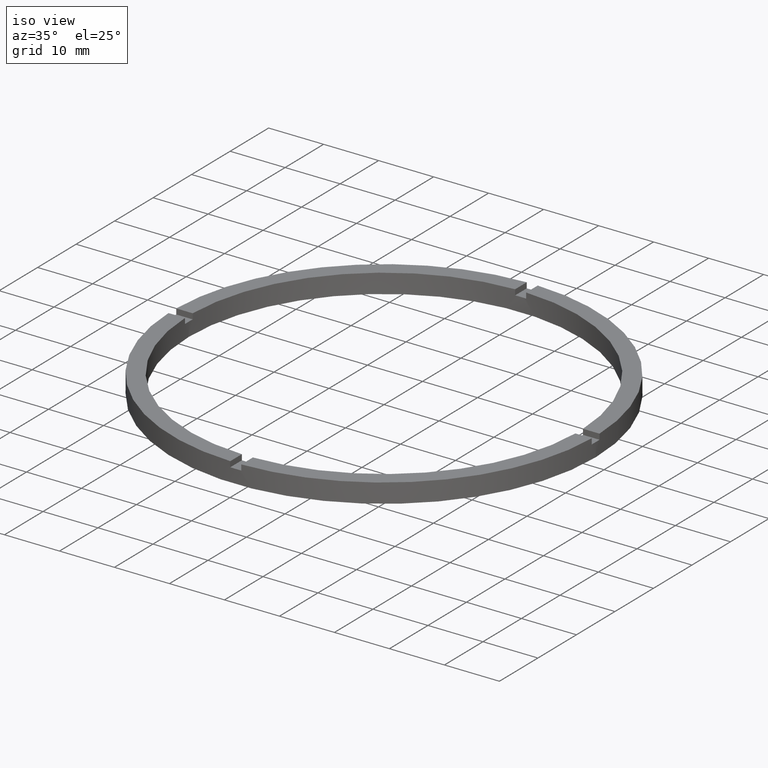
[diagram: clean part render]
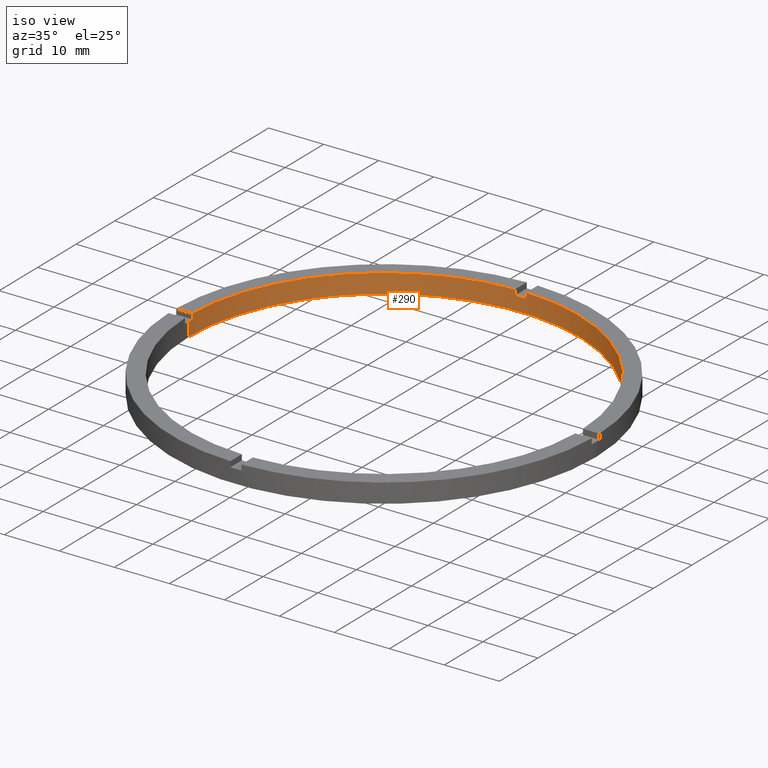
[diagram: same view with one face highlighted and labeled with its STEP entity id]
A machine part, iso view. The second image highlights one B-rep face of the part: STEP entity #290.
In plain terms, the highlighted cylindrical surface (partial cylindrical patch) has radius 35.5 mm, axis along (-0, -0, -1).
Its self-contained STEP definition (entity closure, byte-faithful):
#15 = DIRECTION ( 'NONE',  ( -0.000000000000000000, -0.000000000000000000, -1.000000000000000000 ) ) ;
#25 = DIRECTION ( 'NONE',  ( 0.000000000000000000, 0.000000000000000000, 1.000000000000000000 ) ) ;
#26 = VERTEX_POINT ( 'NONE', #302 ) ;
#38 = LINE ( 'NONE', #237, #43 ) ;
#41 = CARTESIAN_POINT ( 'NONE',  ( 0.9999999999999746869, 35.48591269785801217, 3.500000000000000000 ) ) ;
#43 = VECTOR ( 'NONE', #567, 1000.000000000000000 ) ;
#47 = CIRCLE ( 'NONE', #284, 35.50000000000000711 ) ;
#48 = DIRECTION ( 'NONE',  ( 1.000000000000000000, 0.000000000000000000, 0.000000000000000000 ) ) ;
#60 = LINE ( 'NONE', #716, #602 ) ;
#61 = DIRECTION ( 'NONE',  ( 0.000000000000000000, 0.000000000000000000, 1.000000000000000000 ) ) ;
#62 = ORIENTED_EDGE ( 'NONE', *, *, #647, .T. ) ;
#64 = VECTOR ( 'NONE', #327, 1000.000000000000000 ) ;
#67 = CIRCLE ( 'NONE', #692, 35.50000000000000711 ) ;
#68 = ORIENTED_EDGE ( 'NONE', *, *, #270, .T. ) ;
#78 = DIRECTION ( 'NONE',  ( -0.000000000000000000, -0.000000000000000000, -1.000000000000000000 ) ) ;
#98 = CARTESIAN_POINT ( 'NONE',  ( 0.000000000000000000, 0.000000000000000000, 3.500000000000000000 ) ) ;
#102 = CARTESIAN_POINT ( 'NONE',  ( -1.000000000000025313, 35.48591269785801217, 3.500000000000000000 ) ) ;
#110 = AXIS2_PLACEMENT_3D ( 'NONE', #404, #619, #123 ) ;
#114 = CARTESIAN_POINT ( 'NONE',  ( 0.9999999999999746869, 35.48591269785801217, 3.500000000000000000 ) ) ;
#118 = EDGE_CURVE ( 'NONE', #493, #760, #299, .T. ) ;
#123 = DIRECTION ( 'NONE',  ( 1.000000000000000000, 0.000000000000000000, 0.000000000000000000 ) ) ;
#137 = EDGE_CURVE ( 'NONE', #493, #429, #38, .T. ) ;
#156 = VERTEX_POINT ( 'NONE', #580 ) ;
#167 = ORIENTED_EDGE ( 'NONE', *, *, #230, .F. ) ;
#171 = EDGE_CURVE ( 'NONE', #490, #448, #47, .T. ) ;
#177 = DIRECTION ( 'NONE',  ( 1.000000000000000000, 0.000000000000000000, 0.000000000000000000 ) ) ;
#198 = VERTEX_POINT ( 'NONE', #41 ) ;
#215 = CARTESIAN_POINT ( 'NONE',  ( -1.000000000000025313, 35.48591269785801217, 3.500000000000000000 ) ) ;
#227 = VECTOR ( 'NONE', #694, 1000.000000000000000 ) ;
#230 = EDGE_CURVE ( 'NONE', #542, #770, #771, .T. ) ;
#237 = CARTESIAN_POINT ( 'NONE',  ( -35.48591269785801217, 0.9999999999999726885, 3.500000000000000000 ) ) ;
#245 = CARTESIAN_POINT ( 'NONE',  ( 0.000000000000000000, 0.000000000000000000, 2.500000000000000000 ) ) ;
#247 = VECTOR ( 'NONE', #522, 1000.000000000000000 ) ;
#248 = VERTEX_POINT ( 'NONE', #377 ) ;
#258 = CARTESIAN_POINT ( 'NONE',  ( -1.000000000000025313, 35.48591269785801217, 2.500000000000000000 ) ) ;
#270 = EDGE_CURVE ( 'NONE', #156, #198, #777, .T. ) ;
#280 = CARTESIAN_POINT ( 'NONE',  ( 35.50000000000000711, 4.347496136973104070E-15, 0.000000000000000000 ) ) ;
#281 = CARTESIAN_POINT ( 'NONE',  ( 0.000000000000000000, 0.000000000000000000, 2.500000000000000000 ) ) ;
#284 = AXIS2_PLACEMENT_3D ( 'NONE', #281, #289, #643 ) ;
#289 = DIRECTION ( 'NONE',  ( 0.000000000000000000, -0.000000000000000000, 1.000000000000000000 ) ) ;
#290 = ADVANCED_FACE ( 'NONE', ( #761 ), #507, .F. ) ;
#298 = CARTESIAN_POINT ( 'NONE',  ( 0.000000000000000000, 0.000000000000000000, 3.500000000000000000 ) ) ;
#299 = CIRCLE ( 'NONE', #654, 35.50000000000000711 ) ;
#302 = CARTESIAN_POINT ( 'NONE',  ( -35.50000000000000711, 0.000000000000000000, 0.000000000000000000 ) ) ;
#314 = AXIS2_PLACEMENT_3D ( 'NONE', #298, #78, #625 ) ;
#325 = VECTOR ( 'NONE', #362, 1000.000000000000000 ) ;
#327 = DIRECTION ( 'NONE',  ( -0.000000000000000000, -0.000000000000000000, -1.000000000000000000 ) ) ;
#330 = EDGE_CURVE ( 'NONE', #542, #248, #743, .T. ) ;
#333 = LINE ( 'NONE', #102, #64 ) ;
#335 = ORIENTED_EDGE ( 'NONE', *, *, #620, .T. ) ;
#362 = DIRECTION ( 'NONE',  ( -0.000000000000000000, -0.000000000000000000, -1.000000000000000000 ) ) ;
#373 = DIRECTION ( 'NONE',  ( 1.000000000000000000, 0.000000000000000000, 0.000000000000000000 ) ) ;
#377 = CARTESIAN_POINT ( 'NONE',  ( 35.48591269785801927, 0.9999999999998425704, 2.500000000000000000 ) ) ;
#385 = CARTESIAN_POINT ( 'NONE',  ( 35.48591269785801927, 0.9999999999998425704, 3.500000000000000000 ) ) ;
#404 = CARTESIAN_POINT ( 'NONE',  ( 0.000000000000000000, 0.000000000000000000, 2.500000000000000000 ) ) ;
#406 = EDGE_CURVE ( 'NONE', #490, #198, #502, .T. ) ;
#429 = VERTEX_POINT ( 'NONE', #615 ) ;
#430 = EDGE_LOOP ( 'NONE', ( #167, #475, #711, #68, #703, #700, #480, #62, #685, #717, #335, #593 ) ) ;
#440 = CARTESIAN_POINT ( 'NONE',  ( 35.50000000000000711, 4.347496136973104070E-15, 3.500000000000000000 ) ) ;
#448 = VERTEX_POINT ( 'NONE', #258 ) ;
#460 = CARTESIAN_POINT ( 'NONE',  ( -35.50000000000000711, 0.000000000000000000, 2.500000000000000000 ) ) ;
#467 = DIRECTION ( 'NONE',  ( 0.000000000000000000, 0.000000000000000000, 1.000000000000000000 ) ) ;
#475 = ORIENTED_EDGE ( 'NONE', *, *, #330, .T. ) ;
#480 = ORIENTED_EDGE ( 'NONE', *, *, #642, .F. ) ;
#490 = VERTEX_POINT ( 'NONE', #781 ) ;
#493 = VERTEX_POINT ( 'NONE', #539 ) ;
#502 = LINE ( 'NONE', #114, #227 ) ;
#507 = CYLINDRICAL_SURFACE ( 'NONE', #314, 35.50000000000000711 ) ;
#522 = DIRECTION ( 'NONE',  ( -0.000000000000000000, -0.000000000000000000, -1.000000000000000000 ) ) ;
#539 = CARTESIAN_POINT ( 'NONE',  ( -35.48591269785801217, 0.9999999999999726885, 2.500000000000000000 ) ) ;
#542 = VERTEX_POINT ( 'NONE', #653 ) ;
#554 = DIRECTION ( 'NONE',  ( 0.000000000000000000, 0.000000000000000000, 1.000000000000000000 ) ) ;
#561 = AXIS2_PLACEMENT_3D ( 'NONE', #98, #554, #177 ) ;
#567 = DIRECTION ( 'NONE',  ( 0.000000000000000000, 0.000000000000000000, 1.000000000000000000 ) ) ;
#571 = LINE ( 'NONE', #385, #325 ) ;
#580 = CARTESIAN_POINT ( 'NONE',  ( 35.48591269785801927, 0.9999999999998425704, 3.500000000000000000 ) ) ;
#583 = CIRCLE ( 'NONE', #656, 35.50000000000000711 ) ;
#593 = ORIENTED_EDGE ( 'NONE', *, *, #618, .F. ) ;
#602 = VECTOR ( 'NONE', #15, 1000.000000000000000 ) ;
#615 = CARTESIAN_POINT ( 'NONE',  ( -35.48591269785801217, 0.9999999999999726885, 3.500000000000000000 ) ) ;
#618 = EDGE_CURVE ( 'NONE', #770, #26, #67, .T. ) ;
#619 = DIRECTION ( 'NONE',  ( 0.000000000000000000, 0.000000000000000000, 1.000000000000000000 ) ) ;
#620 = EDGE_CURVE ( 'NONE', #760, #26, #60, .T. ) ;
#625 = DIRECTION ( 'NONE',  ( -1.000000000000000000, 0.000000000000000000, 0.000000000000000000 ) ) ;
#626 = CARTESIAN_POINT ( 'NONE',  ( 0.000000000000000000, 0.000000000000000000, 0.000000000000000000 ) ) ;
#642 = EDGE_CURVE ( 'NONE', #740, #448, #333, .T. ) ;
#643 = DIRECTION ( 'NONE',  ( 1.000000000000000000, 0.000000000000000000, 0.000000000000000000 ) ) ;
#647 = EDGE_CURVE ( 'NONE', #740, #429, #583, .T. ) ;
#653 = CARTESIAN_POINT ( 'NONE',  ( 35.50000000000000711, 4.347496136973104070E-15, 2.500000000000000000 ) ) ;
#654 = AXIS2_PLACEMENT_3D ( 'NONE', #245, #467, #48 ) ;
#656 = AXIS2_PLACEMENT_3D ( 'NONE', #757, #25, #664 ) ;
#664 = DIRECTION ( 'NONE',  ( 1.000000000000000000, 0.000000000000000000, 0.000000000000000000 ) ) ;
#685 = ORIENTED_EDGE ( 'NONE', *, *, #137, .F. ) ;
#692 = AXIS2_PLACEMENT_3D ( 'NONE', #626, #61, #373 ) ;
#694 = DIRECTION ( 'NONE',  ( 0.000000000000000000, 0.000000000000000000, 1.000000000000000000 ) ) ;
#700 = ORIENTED_EDGE ( 'NONE', *, *, #171, .T. ) ;
#703 = ORIENTED_EDGE ( 'NONE', *, *, #406, .F. ) ;
#711 = ORIENTED_EDGE ( 'NONE', *, *, #759, .F. ) ;
#716 = CARTESIAN_POINT ( 'NONE',  ( -35.50000000000000711, 0.000000000000000000, 3.500000000000000000 ) ) ;
#717 = ORIENTED_EDGE ( 'NONE', *, *, #118, .T. ) ;
#740 = VERTEX_POINT ( 'NONE', #215 ) ;
#743 = CIRCLE ( 'NONE', #110, 35.50000000000000711 ) ;
#757 = CARTESIAN_POINT ( 'NONE',  ( 0.000000000000000000, 0.000000000000000000, 3.500000000000000000 ) ) ;
#759 = EDGE_CURVE ( 'NONE', #156, #248, #571, .T. ) ;
#760 = VERTEX_POINT ( 'NONE', #460 ) ;
#761 = FACE_OUTER_BOUND ( 'NONE', #430, .T. ) ;
#770 = VERTEX_POINT ( 'NONE', #280 ) ;
#771 = LINE ( 'NONE', #440, #247 ) ;
#777 = CIRCLE ( 'NONE', #561, 35.50000000000000711 ) ;
#781 = CARTESIAN_POINT ( 'NONE',  ( 0.9999999999999746869, 35.48591269785801217, 2.500000000000000000 ) ) ;